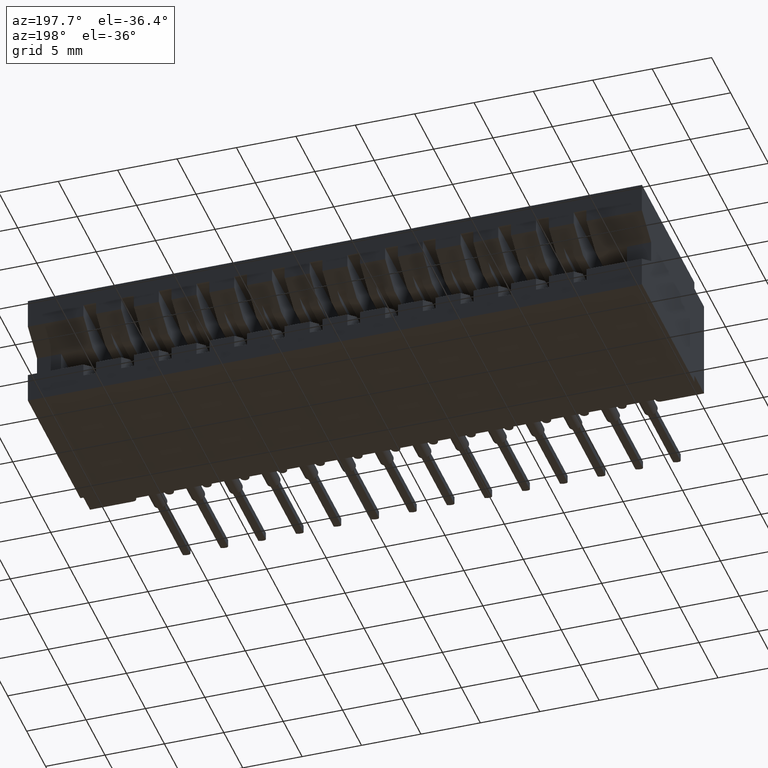
[diagram: clean part render]
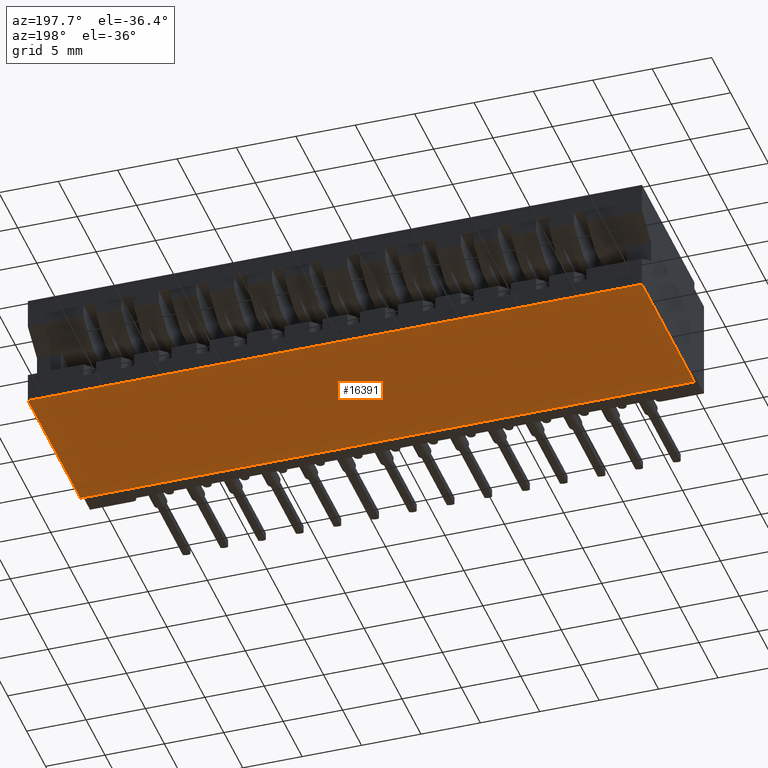
[diagram: same view with one face highlighted and labeled with its STEP entity id]
A machine part, auxiliary view. The second image highlights one B-rep face of the part: STEP entity #16391.
In plain terms, the highlighted planar face has unit normal (0, 0, 1).
Its self-contained STEP definition (entity closure, byte-faithful):
#336 = DIRECTION ( 'NONE',  ( -1.000000000000000000, -0.0000000000000000000, -0.0000000000000000000 ) ) ;
#515 = DIRECTION ( 'NONE',  ( 0.0000000000000000000, 0.0000000000000000000, 1.000000000000000000 ) ) ;
#697 = VECTOR ( 'NONE', #17795, 39.37007874015748143 ) ;
#1085 = CARTESIAN_POINT ( 'NONE',  ( 2.035000000000000142, 0.1000000000000000056, -0.3900000000000000133 ) ) ;
#1168 = VERTEX_POINT ( 'NONE', #17061 ) ;
#1236 = VECTOR ( 'NONE', #19107, 39.37007874015748143 ) ;
#2591 = VECTOR ( 'NONE', #336, 39.37007874015748143 ) ;
#4536 = CARTESIAN_POINT ( 'NONE',  ( 0.0000000000000000000, 0.6449999999999999067, -0.3900000000000000133 ) ) ;
#5505 = EDGE_CURVE ( 'NONE', #24511, #19490, #7397, .T. ) ;
#5755 = FACE_OUTER_BOUND ( 'NONE', #8051, .T. ) ;
#6105 = CARTESIAN_POINT ( 'NONE',  ( 2.035000000000000142, 0.6449999999999999067, -0.3900000000000000133 ) ) ;
#6373 = ORIENTED_EDGE ( 'NONE', *, *, #14074, .T. ) ;
#7214 = ORIENTED_EDGE ( 'NONE', *, *, #5505, .T. ) ;
#7397 = LINE ( 'NONE', #6105, #697 ) ;
#8051 = EDGE_LOOP ( 'NONE', ( #7214, #6373, #11326, #23356 ) ) ;
#8363 = EDGE_CURVE ( 'NONE', #1168, #21240, #21008, .T. ) ;
#8410 = LINE ( 'NONE', #12210, #11575 ) ;
#10290 = DIRECTION ( 'NONE',  ( 1.000000000000000000, 0.0000000000000000000, -0.0000000000000000000 ) ) ;
#11326 = ORIENTED_EDGE ( 'NONE', *, *, #8363, .F. ) ;
#11575 = VECTOR ( 'NONE', #17699, 39.37007874015748143 ) ;
#12083 = EDGE_CURVE ( 'NONE', #24511, #1168, #23736, .T. ) ;
#12210 = CARTESIAN_POINT ( 'NONE',  ( 2.035000000000000142, 0.1000000000000000056, -0.3900000000000000133 ) ) ;
#14074 = EDGE_CURVE ( 'NONE', #19490, #21240, #8410, .T. ) ;
#15524 = CARTESIAN_POINT ( 'NONE',  ( 0.0000000000000000000, 0.6449999999999999067, -0.3900000000000000133 ) ) ;
#16125 = AXIS2_PLACEMENT_3D ( 'NONE', #18060, #515, #10290 ) ;
#16391 = ADVANCED_FACE ( 'NONE', ( #5755 ), #21249, .F. ) ;
#17061 = CARTESIAN_POINT ( 'NONE',  ( 0.0000000000000000000, 0.6449999999999999067, -0.3900000000000000133 ) ) ;
#17441 = CARTESIAN_POINT ( 'NONE',  ( 0.0000000000000000000, 0.1000000000000000056, -0.3900000000000000133 ) ) ;
#17699 = DIRECTION ( 'NONE',  ( -1.000000000000000000, -0.0000000000000000000, -0.0000000000000000000 ) ) ;
#17795 = DIRECTION ( 'NONE',  ( -0.0000000000000000000, -1.000000000000000000, -0.0000000000000000000 ) ) ;
#18060 = CARTESIAN_POINT ( 'NONE',  ( 0.0000000000000000000, 0.6449999999999999067, -0.3900000000000000133 ) ) ;
#19107 = DIRECTION ( 'NONE',  ( -0.0000000000000000000, -1.000000000000000000, -0.0000000000000000000 ) ) ;
#19490 = VERTEX_POINT ( 'NONE', #1085 ) ;
#21008 = LINE ( 'NONE', #15524, #1236 ) ;
#21240 = VERTEX_POINT ( 'NONE', #17441 ) ;
#21249 = PLANE ( 'NONE',  #16125 ) ;
#22379 = CARTESIAN_POINT ( 'NONE',  ( 2.035000000000000142, 0.6449999999999999067, -0.3900000000000000133 ) ) ;
#23356 = ORIENTED_EDGE ( 'NONE', *, *, #12083, .F. ) ;
#23736 = LINE ( 'NONE', #4536, #2591 ) ;
#24511 = VERTEX_POINT ( 'NONE', #22379 ) ;